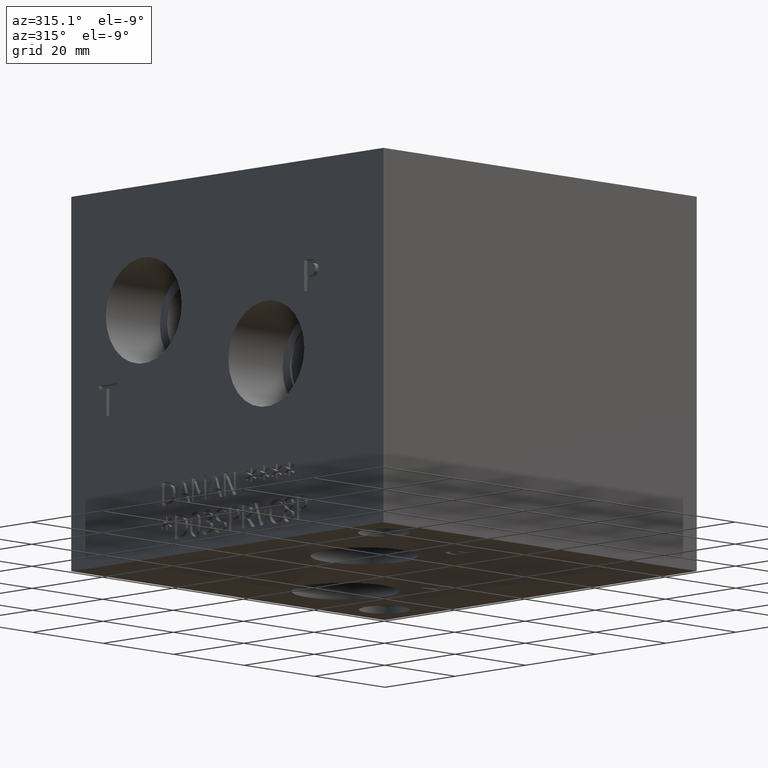
[diagram: clean part render]
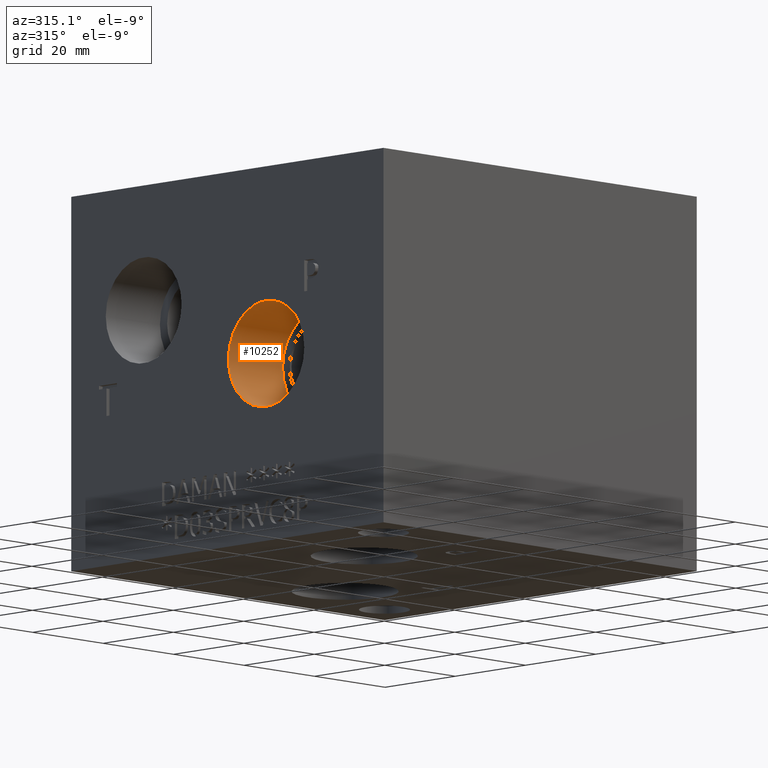
[diagram: same view with one face highlighted and labeled with its STEP entity id]
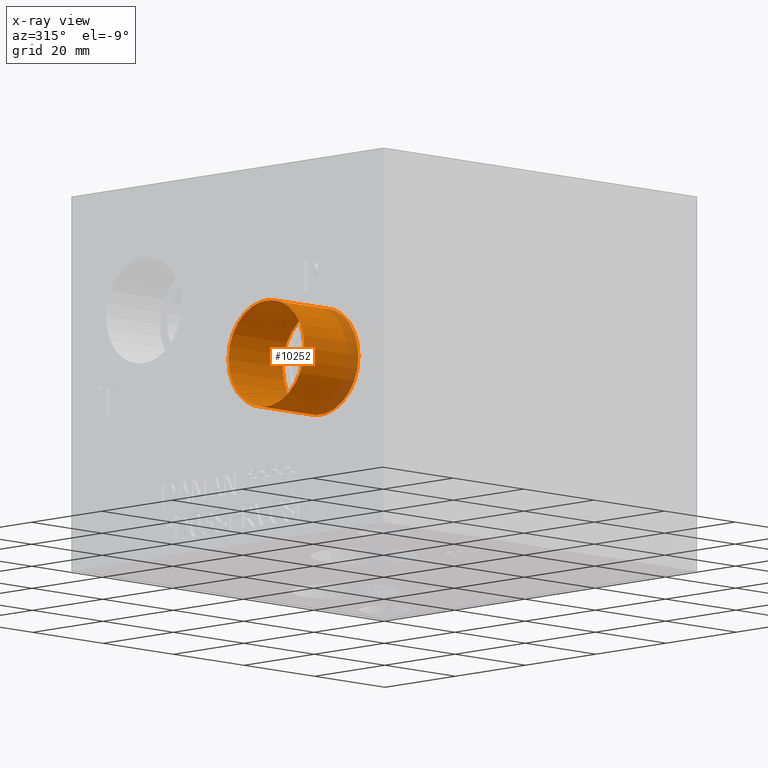
[diagram: x-ray of the same camera — body ghosted, the highlighted face saturated]
A machine part, auxiliary view. The second image highlights one B-rep face of the part: STEP entity #10252.
The next image is the same camera in x-ray: the body ghosted, the highlighted face saturated — about 11% of this face is hidden behind the body in this view.
In plain terms, the highlighted cylindrical surface (bore or boss wall) has radius 10.795 mm, axis along (-1, 0, 0).
Its self-contained STEP definition (entity closure, byte-faithful):
#21=CYLINDRICAL_SURFACE('',#10677,10.795);
#81=CIRCLE('',#10444,10.795);
#82=CIRCLE('',#10445,10.795);
#109=CIRCLE('',#10674,10.795);
#110=CIRCLE('',#10675,10.795);
#1060=FACE_OUTER_BOUND('',#1638,.T.);
#1638=EDGE_LOOP('',(#8871,#8872,#8873,#8874,#8875,#8876));
#2654=LINE('',#17394,#3634);
#3634=VECTOR('',#12467,10.795);
#4551=VERTEX_POINT('',#16002);
#4552=VERTEX_POINT('',#16003);
#4839=VERTEX_POINT('',#17387);
#4840=VERTEX_POINT('',#17388);
#5732=EDGE_CURVE('',#4551,#4552,#81,.T.);
#5733=EDGE_CURVE('',#4552,#4551,#82,.T.);
#6219=EDGE_CURVE('',#4839,#4840,#109,.T.);
#6220=EDGE_CURVE('',#4840,#4839,#110,.T.);
#6222=EDGE_CURVE('',#4552,#4840,#2654,.T.);
#8871=ORIENTED_EDGE('',*,*,#5732,.F.);
#8872=ORIENTED_EDGE('',*,*,#5733,.F.);
#8873=ORIENTED_EDGE('',*,*,#6222,.T.);
#8874=ORIENTED_EDGE('',*,*,#6219,.F.);
#8875=ORIENTED_EDGE('',*,*,#6220,.F.);
#8876=ORIENTED_EDGE('',*,*,#6222,.F.);
#10252=ADVANCED_FACE('',(#1060),#21,.F.);
#10444=AXIS2_PLACEMENT_3D('',#16004,#11596,#11597);
#10445=AXIS2_PLACEMENT_3D('',#16005,#11598,#11599);
#10674=AXIS2_PLACEMENT_3D('',#17389,#12459,#12460);
#10675=AXIS2_PLACEMENT_3D('',#17390,#12461,#12462);
#10677=AXIS2_PLACEMENT_3D('',#17393,#12465,#12466);
#11596=DIRECTION('center_axis',(1.,0.,0.));
#11597=DIRECTION('ref_axis',(0.,1.,0.));
#11598=DIRECTION('center_axis',(1.,0.,0.));
#11599=DIRECTION('ref_axis',(0.,1.,0.));
#12459=DIRECTION('center_axis',(-1.,0.,0.));
#12460=DIRECTION('ref_axis',(0.,1.,0.));
#12461=DIRECTION('center_axis',(-1.,0.,0.));
#12462=DIRECTION('ref_axis',(0.,1.,0.));
#12465=DIRECTION('center_axis',(-1.,0.,0.));
#12466=DIRECTION('ref_axis',(0.,1.,0.));
#12467=DIRECTION('',(1.,0.,0.));
#16002=CARTESIAN_POINT('',(0.,44.1452,38.1));
#16003=CARTESIAN_POINT('',(0.,22.5552,38.1));
#16004=CARTESIAN_POINT('Origin',(0.,33.3502,38.1));
#16005=CARTESIAN_POINT('Origin',(0.,33.3502,38.1));
#17387=CARTESIAN_POINT('',(15.367,44.1452,38.1));
#17388=CARTESIAN_POINT('',(15.367,22.5552,38.1));
#17389=CARTESIAN_POINT('Origin',(15.367,33.3502,38.1));
#17390=CARTESIAN_POINT('Origin',(15.367,33.3502,38.1));
#17393=CARTESIAN_POINT('Origin',(7.6835,33.3502,38.1));
#17394=CARTESIAN_POINT('',(7.6835,22.5552,38.1));